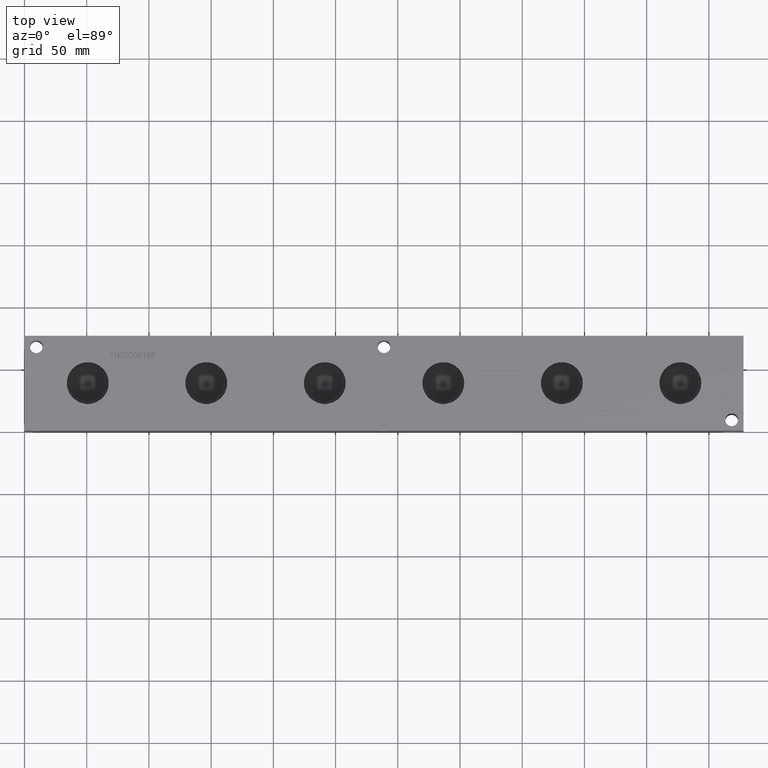
[diagram: clean part render]
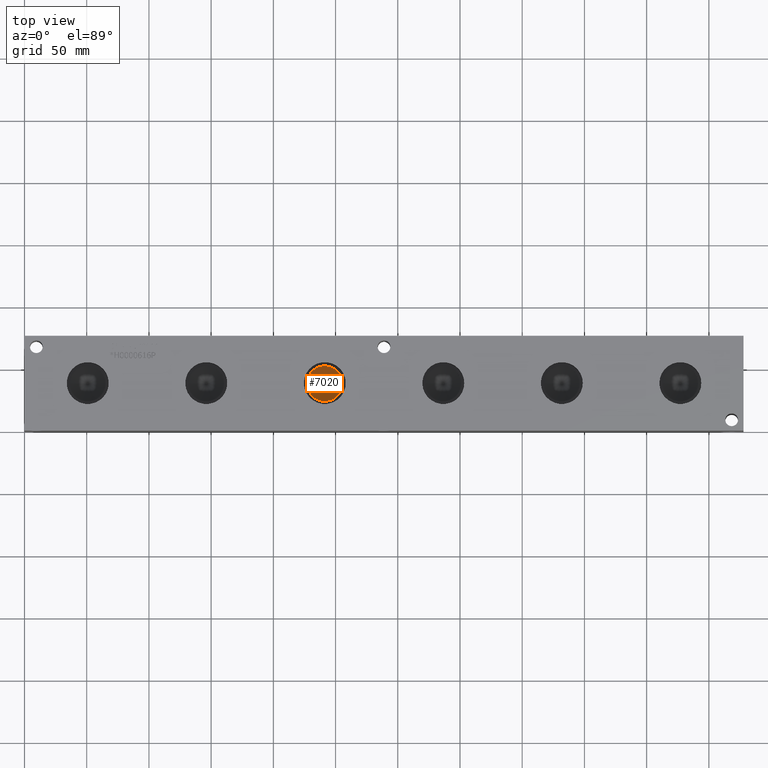
[diagram: same view with one face highlighted and labeled with its STEP entity id]
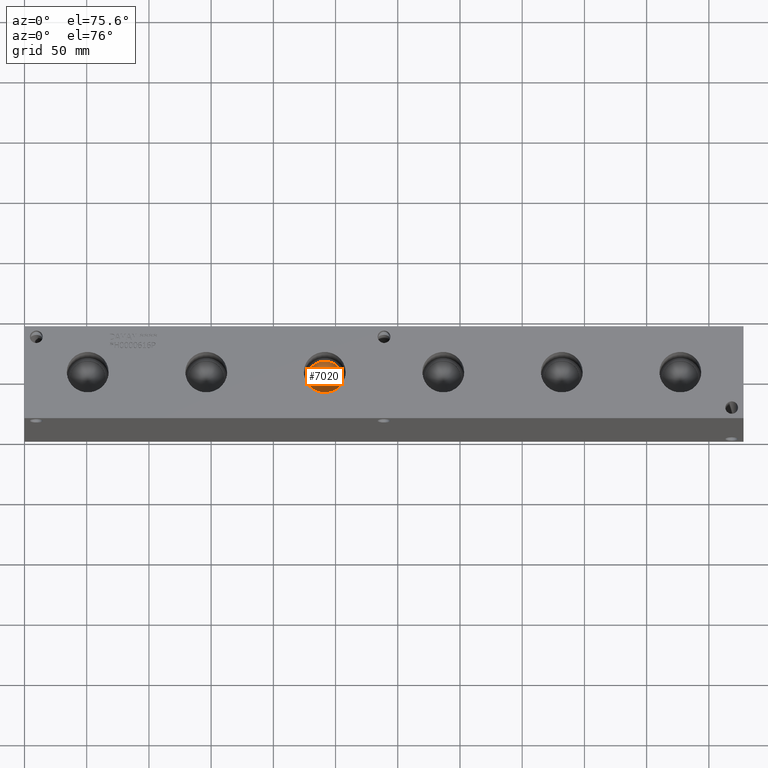
[diagram: same view with one face highlighted and labeled with its STEP entity id]
A machine part, top view. The second image highlights one B-rep face of the part: STEP entity #7020.
A second angle (auxiliary view) of the same face is appended — the face is thin or edge-on in the first view.
In plain terms, the highlighted conical surface has half-angle 60 deg.
Its self-contained STEP definition (entity closure, byte-faithful):
#15=CONICAL_SURFACE('',#7335,7.14375,1.0471975511966);
#97=CIRCLE('',#7336,14.2875);
#98=CIRCLE('',#7337,14.2875);
#734=FACE_OUTER_BOUND('',#1130,.T.);
#1130=EDGE_LOOP('',(#6131,#6132,#6133,#6134));
#1829=LINE('',#11936,#2505);
#2505=VECTOR('',#8595,7.14375);
#3342=VERTEX_POINT('',#11932);
#3343=VERTEX_POINT('',#11933);
#3344=VERTEX_POINT('',#11935);
#4292=EDGE_CURVE('',#3342,#3343,#97,.T.);
#4293=EDGE_CURVE('',#3343,#3344,#1829,.T.);
#4294=EDGE_CURVE('',#3343,#3342,#98,.T.);
#6131=ORIENTED_EDGE('',*,*,#4292,.T.);
#6132=ORIENTED_EDGE('',*,*,#4293,.T.);
#6133=ORIENTED_EDGE('',*,*,#4293,.F.);
#6134=ORIENTED_EDGE('',*,*,#4294,.T.);
#7020=ADVANCED_FACE('',(#734),#15,.F.);
#7335=AXIS2_PLACEMENT_3D('',#11931,#8591,#8592);
#7336=AXIS2_PLACEMENT_3D('',#11934,#8593,#8594);
#7337=AXIS2_PLACEMENT_3D('',#11937,#8596,#8597);
#8591=DIRECTION('center_axis',(0.,0.,1.));
#8592=DIRECTION('ref_axis',(1.,0.,0.));
#8593=DIRECTION('center_axis',(0.,0.,1.));
#8594=DIRECTION('ref_axis',(1.,0.,0.));
#8595=DIRECTION('',(0.866025403784438,1.06057523872491E-16,-0.5));
#8596=DIRECTION('center_axis',(0.,0.,1.));
#8597=DIRECTION('ref_axis',(1.,0.,0.));
#11931=CARTESIAN_POINT('Origin',(241.3,38.1,52.2514640144766));
#11932=CARTESIAN_POINT('',(255.5875,38.1,56.37591));
#11933=CARTESIAN_POINT('',(227.0125,38.1,56.37591));
#11934=CARTESIAN_POINT('Origin',(241.3,38.1,56.37591));
#11935=CARTESIAN_POINT('',(241.3,38.1,48.1270180289532));
#11936=CARTESIAN_POINT('',(234.15625,38.1,52.2514640144766));
#11937=CARTESIAN_POINT('Origin',(241.3,38.1,56.37591));